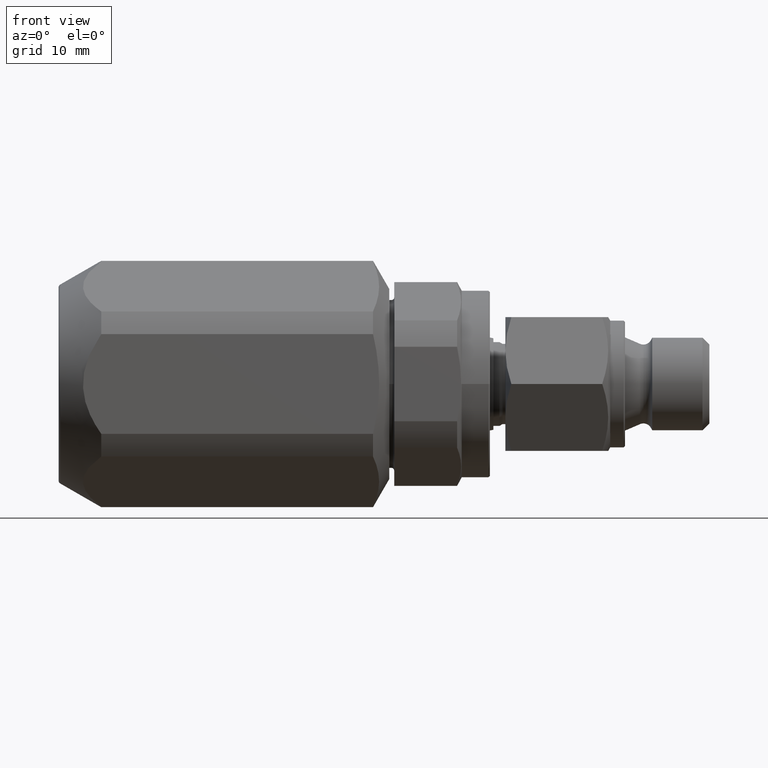
[diagram: clean part render]
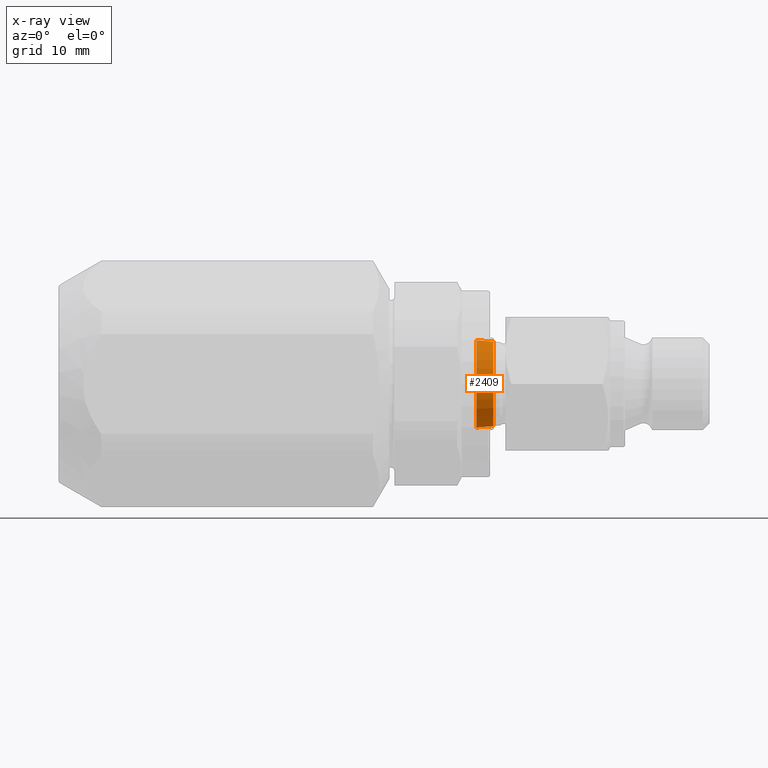
[diagram: x-ray — body ghosted, one internal face saturated and labeled with its STEP entity id]
A machine part, front view, then the same camera in x-ray: the body is ghosted and one INTERNAL B-rep face — a face not visible from any outside direction — is saturated and labeled: STEP entity #2409.
In plain terms, the highlighted conical surface has half-angle 4.764 deg.
Its self-contained STEP definition (entity closure, byte-faithful):
#78 = EDGE_CURVE ( 'NONE', #79, #80, #1440, .T. ) ;
#79 = VERTEX_POINT ( 'NONE', #1436 ) ;
#80 = VERTEX_POINT ( 'NONE', #1435 ) ;
#200 = ORIENTED_EDGE ( 'NONE', *, *, #78, .T. ) ;
#201 = ORIENTED_EDGE ( 'NONE', *, *, #202, .F. ) ;
#202 = EDGE_CURVE ( 'NONE', #2414, #80, #1587, .T. ) ;
#1309 = CARTESIAN_POINT ( 'NONE',  ( 59.39999999999999900, 1.069778588269792000E-017, 4.114522060622530000E-017 ) ) ;
#1435 = CARTESIAN_POINT ( 'NONE',  ( 59.39999999999999900, 1.069778588269792000E-017, 6.200000000000000200 ) ) ;
#1436 = CARTESIAN_POINT ( 'NONE',  ( 59.39999999999999900, 7.699788013540568300E-016, -6.200000000000000200 ) ) ;
#1437 = DIRECTION ( 'NONE',  ( 0.0000000000000000000, 0.0000000000000000000, 1.000000000000000000 ) ) ;
#1438 = DIRECTION ( 'NONE',  ( -1.000000000000000000, 0.0000000000000000000, 0.0000000000000000000 ) ) ;
#1439 = AXIS2_PLACEMENT_3D ( 'NONE', #1309, #1438, #1437 ) ;
#1440 = CIRCLE ( 'NONE', #1439, 6.200000000000000200 ) ;
#1580 = DIRECTION ( 'NONE',  ( -0.9965457582448796800, 0.0000000000000000000, 0.08304547985373907100 ) ) ;
#1581 = VECTOR ( 'NONE', #1580, 1000.000000000000100 ) ;
#1582 = CARTESIAN_POINT ( 'NONE',  ( 59.39999999999999900, 1.069778588269792000E-017, 6.200000000000000200 ) ) ;
#1587 = LINE ( 'NONE', #1582, #1581 ) ;
#2409 = ADVANCED_FACE ( 'NONE', ( #3517 ), #3515, .F. ) ;
#2410 = EDGE_LOOP ( 'NONE', ( #2411, #2415, #200, #201 ) ) ;
#2411 = ORIENTED_EDGE ( 'NONE', *, *, #2412, .F. ) ;
#2412 = EDGE_CURVE ( 'NONE', #2413, #2414, #3510, .T. ) ;
#2413 = VERTEX_POINT ( 'NONE', #3506 ) ;
#2414 = VERTEX_POINT ( 'NONE', #3505 ) ;
#2415 = ORIENTED_EDGE ( 'NONE', *, *, #2416, .T. ) ;
#2416 = EDGE_CURVE ( 'NONE', #2413, #79, #3504, .T. ) ;
#3501 = DIRECTION ( 'NONE',  ( -0.9965457582448796800, 1.017013810865375600E-017, -0.08304547985373907100 ) ) ;
#3502 = VECTOR ( 'NONE', #3501, 1000.000000000000100 ) ;
#3503 = CARTESIAN_POINT ( 'NONE',  ( 59.39999999999999900, 7.699788013540568300E-016, -6.200000000000000200 ) ) ;
#3504 = LINE ( 'NONE', #3503, #3502 ) ;
#3505 = CARTESIAN_POINT ( 'NONE',  ( 61.80000000000000400, 1.069778588269792000E-017, 6.000000000000000000 ) ) ;
#3506 = CARTESIAN_POINT ( 'NONE',  ( 61.80000000000000400, 7.577323333625833700E-016, -6.000000000000000000 ) ) ;
#3507 = DIRECTION ( 'NONE',  ( 0.0000000000000000000, 0.0000000000000000000, 1.000000000000000000 ) ) ;
#3508 = DIRECTION ( 'NONE',  ( -1.000000000000000000, 0.0000000000000000000, 0.0000000000000000000 ) ) ;
#3509 = AXIS2_PLACEMENT_3D ( 'NONE', #3516, #3508, #3507 ) ;
#3510 = CIRCLE ( 'NONE', #3509, 6.000000000000000000 ) ;
#3511 = DIRECTION ( 'NONE',  ( 0.0000000000000000000, 0.0000000000000000000, 1.000000000000000000 ) ) ;
#3512 = DIRECTION ( 'NONE',  ( -1.000000000000000000, 0.0000000000000000000, 0.0000000000000000000 ) ) ;
#3513 = CARTESIAN_POINT ( 'NONE',  ( 59.39999999999999900, 1.069778588269792000E-017, 4.114522060622530000E-017 ) ) ;
#3514 = AXIS2_PLACEMENT_3D ( 'NONE', #3513, #3512, #3511 ) ;
#3515 = CONICAL_SURFACE ( 'NONE', #3514, 6.200000000000000200, 0.08314123188844033100 ) ;
#3516 = CARTESIAN_POINT ( 'NONE',  ( 61.80000000000000400, 1.069778588269792000E-017, 4.114522060622530000E-017 ) ) ;
#3517 = FACE_OUTER_BOUND ( 'NONE', #2410, .T. ) ;